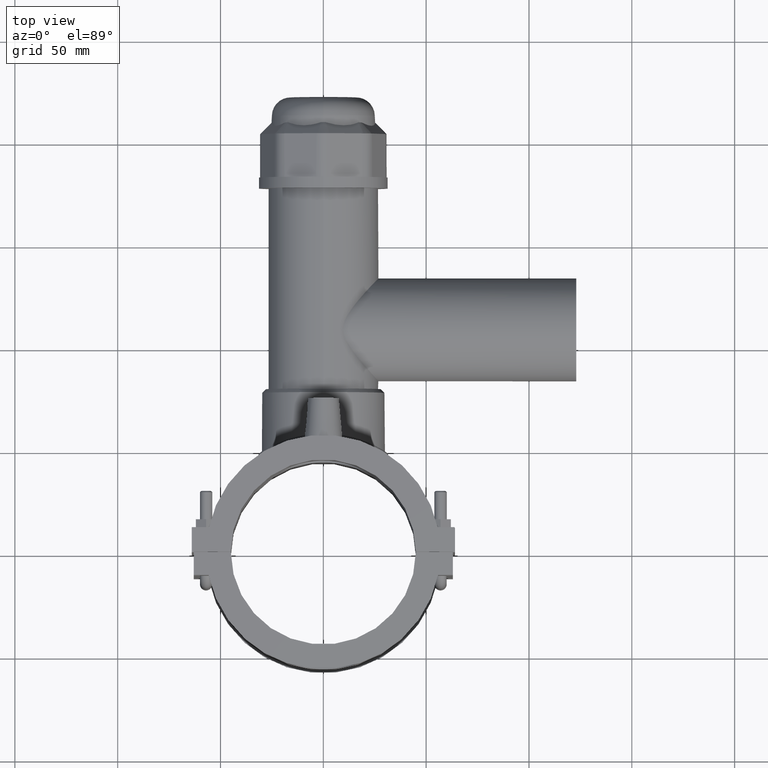
[diagram: clean part render]
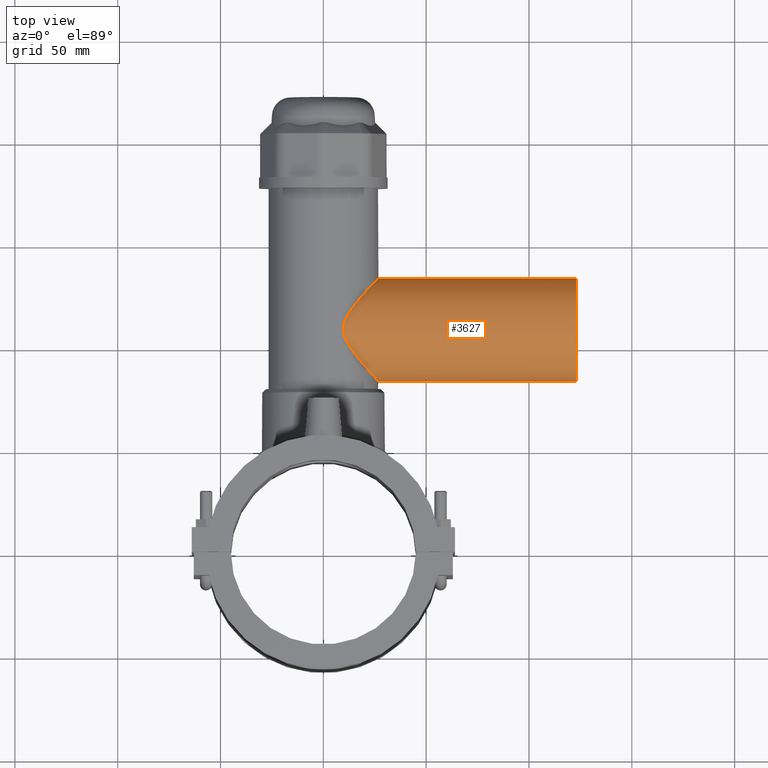
[diagram: same view with one face highlighted and labeled with its STEP entity id]
A machine part, top view. The second image highlights one B-rep face of the part: STEP entity #3627.
In plain terms, the highlighted cylindrical surface (bore or boss wall) has radius 25 mm, axis along (1, 0, 0).
Its self-contained STEP definition (entity closure, byte-faithful):
#669=FACE_BOUND('',#1115,.T.);
#727=B_SPLINE_CURVE_WITH_KNOTS('',3,(#5397,#5398,#5399,#5400,#5401,#5402,
#5403,#5404,#5405,#5406,#5407,#5408,#5409,#5410,#5411,#5412,#5413,#5414,
#5415,#5416,#5417,#5418,#5419,#5420,#5421,#5422,#5423,#5424,#5425,#5426,
#5427,#5428,#5429,#5430,#5431,#5432,#5433,#5434,#5435,#5436,#5437,#5438,
#5439,#5440,#5441,#5442,#5443,#5444,#5445,#5446,#5447,#5448,#5449,#5450,
#5451,#5452,#5453,#5454,#5455,#5456,#5457,#5458,#5459,#5460,#5461,#5462,
#5463,#5464,#5465,#5466,#5467,#5468,#5469,#5470),.UNSPECIFIED.,.T.,.F.,
(4,2,2,2,2,2,2,2,2,2,2,2,2,2,2,2,2,2,2,2,2,2,2,2,2,2,2,2,2,2,2,2,2,2,2,
2,4),(0.,0.282912475683647,0.565824951367295,1.13164990273459,1.69747485410188,
2.26329980546918,2.77255680881902,3.28181381216886,3.79107081551869,4.30032781886853,
4.80958482221837,5.31884182556821,5.82809882891805,6.33735583226789,6.90318078363518,
7.46900573500248,8.03483068636977,8.31774316205342,8.60065563773706,8.88356811342071,
9.16648058910436,9.73230554047165,10.2981304918389,10.8639554432062,11.3732124465561,
11.8824694499059,12.3917264532558,12.9009834566056,13.4102404599554,13.9194974633053,
14.4287544666551,14.9380114700049,15.5038364213722,16.0696613727395,16.6354863241068,
16.9183987997905,17.2013112754741),.UNSPECIFIED.);
#825=CYLINDRICAL_SURFACE('',#3859,25.);
#883=FACE_OUTER_BOUND('',#1114,.T.);
#1114=EDGE_LOOP('',(#2416));
#1115=EDGE_LOOP('',(#2417));
#1396=CIRCLE('',#3860,25.);
#1527=VERTEX_POINT('',#5394);
#1528=VERTEX_POINT('',#5396);
#1881=EDGE_CURVE('',#1527,#1527,#1396,.T.);
#1882=EDGE_CURVE('',#1528,#1528,#727,.T.);
#2416=ORIENTED_EDGE('',*,*,#1881,.F.);
#2417=ORIENTED_EDGE('',*,*,#1882,.F.);
#3627=ADVANCED_FACE('',(#883,#669),#825,.T.);
#3859=AXIS2_PLACEMENT_3D('',#5393,#4209,#4210);
#3860=AXIS2_PLACEMENT_3D('',#5395,#4211,#4212);
#4209=DIRECTION('center_axis',(1.,0.,0.));
#4210=DIRECTION('ref_axis',(0.,1.,0.));
#4211=DIRECTION('center_axis',(1.,0.,0.));
#4212=DIRECTION('ref_axis',(0.,0.,-1.));
#5393=CARTESIAN_POINT('Origin',(61.5,109.,0.));
#5394=CARTESIAN_POINT('',(123.,134.,0.));
#5395=CARTESIAN_POINT('Origin',(123.,109.,0.));
#5396=CARTESIAN_POINT('',(9.5864813670084,109.,-25.));
#5397=CARTESIAN_POINT('Ctrl Pts',(9.5864813670084,109.,-25.));
#5398=CARTESIAN_POINT('Ctrl Pts',(9.5864813670084,108.056958414388,-25.));
#5399=CARTESIAN_POINT('Ctrl Pts',(9.72519514003048,107.168776459679,-24.9475965368762));
#5400=CARTESIAN_POINT('Ctrl Pts',(10.1851279603164,105.462940205752,-24.7633834780037));
#5401=CARTESIAN_POINT('Ctrl Pts',(10.5057935558995,104.645168873005,-24.6312763549017));
#5402=CARTESIAN_POINT('Ctrl Pts',(11.6385803653009,102.252372347268,-24.1273116363703));
#5403=CARTESIAN_POINT('Ctrl Pts',(12.6135505562659,100.73756419557,-23.6492324893562));
#5404=CARTESIAN_POINT('Ctrl Pts',(14.711166927405,97.7935456058996,-22.4046741249319));
#5405=CARTESIAN_POINT('Ctrl Pts',(15.8327218656411,96.3767810364707,-21.6389385761058));
#5406=CARTESIAN_POINT('Ctrl Pts',(18.0335876979206,93.7068362563268,-19.8420881294255));
#5407=CARTESIAN_POINT('Ctrl Pts',(19.1140234258386,92.4550062030486,-18.810345262376));
#5408=CARTESIAN_POINT('Ctrl Pts',(21.0058624306453,90.302893190283,-16.6582322496104));
#5409=CARTESIAN_POINT('Ctrl Pts',(21.8940005759985,89.3126929903027,-15.4889800650539));
#5410=CARTESIAN_POINT('Ctrl Pts',(23.5203517307663,87.5186187206232,-12.8859931429871));
#5411=CARTESIAN_POINT('Ctrl Pts',(24.2582777769709,86.7148384923688,-11.4520144458179));
#5412=CARTESIAN_POINT('Ctrl Pts',(25.4788668042024,85.3920133143711,-8.39285766038594));
#5413=CARTESIAN_POINT('Ctrl Pts',(25.9626238318026,84.8717318239317,-6.76383413859713));
#5414=CARTESIAN_POINT('Ctrl Pts',(26.6108376592742,84.175573121008,-3.41622710121228));
#5415=CARTESIAN_POINT('Ctrl Pts',(26.775,84.,-1.69752334449946));
#5416=CARTESIAN_POINT('Ctrl Pts',(26.775,84.,1.69752334449946));
#5417=CARTESIAN_POINT('Ctrl Pts',(26.6108376592742,84.175573121008,3.41622710121227));
#5418=CARTESIAN_POINT('Ctrl Pts',(25.9626238318026,84.8717318239317,6.76383413859712));
#5419=CARTESIAN_POINT('Ctrl Pts',(25.4788668042025,85.3920133143711,8.39285766038594));
#5420=CARTESIAN_POINT('Ctrl Pts',(24.2582777769709,86.7148384923688,11.4520144458179));
#5421=CARTESIAN_POINT('Ctrl Pts',(23.5203517307663,87.5186187206232,12.8859931429871));
#5422=CARTESIAN_POINT('Ctrl Pts',(21.8940005759985,89.3126929903027,15.4889800650539));
#5423=CARTESIAN_POINT('Ctrl Pts',(21.0058624306454,90.302893190283,16.6582322496104));
#5424=CARTESIAN_POINT('Ctrl Pts',(19.1140234258387,92.4550062030486,18.810345262376));
#5425=CARTESIAN_POINT('Ctrl Pts',(18.0335876979207,93.7068362563267,19.8420881294255));
#5426=CARTESIAN_POINT('Ctrl Pts',(15.8327218656411,96.3767810364707,21.6389385761058));
#5427=CARTESIAN_POINT('Ctrl Pts',(14.711166927405,97.7935456058996,22.4046741249319));
#5428=CARTESIAN_POINT('Ctrl Pts',(12.6135505562659,100.73756419557,23.6492324893562));
#5429=CARTESIAN_POINT('Ctrl Pts',(11.6385803653009,102.252372347268,24.1273116363703));
#5430=CARTESIAN_POINT('Ctrl Pts',(10.5057935558995,104.645168873005,24.6312763549017));
#5431=CARTESIAN_POINT('Ctrl Pts',(10.1851279603164,105.462940205752,24.7633834780037));
#5432=CARTESIAN_POINT('Ctrl Pts',(9.72519514003057,107.168776459679,24.9475965368762));
#5433=CARTESIAN_POINT('Ctrl Pts',(9.58648136700849,108.056958414388,25.));
#5434=CARTESIAN_POINT('Ctrl Pts',(9.5864813670085,109.943041585612,25.));
#5435=CARTESIAN_POINT('Ctrl Pts',(9.72519514003058,110.831223540321,24.9475965368762));
#5436=CARTESIAN_POINT('Ctrl Pts',(10.1851279603164,112.537059794248,24.7633834780037));
#5437=CARTESIAN_POINT('Ctrl Pts',(10.5057935558996,113.354831126995,24.6312763549017));
#5438=CARTESIAN_POINT('Ctrl Pts',(11.6385803653009,115.747627652732,24.1273116363703));
#5439=CARTESIAN_POINT('Ctrl Pts',(12.6135505562659,117.26243580443,23.6492324893562));
#5440=CARTESIAN_POINT('Ctrl Pts',(14.711166927405,120.2064543941,22.4046741249319));
#5441=CARTESIAN_POINT('Ctrl Pts',(15.8327218656412,121.623218963529,21.6389385761058));
#5442=CARTESIAN_POINT('Ctrl Pts',(18.0335876979207,124.293163743673,19.8420881294255));
#5443=CARTESIAN_POINT('Ctrl Pts',(19.1140234258387,125.544993796951,18.810345262376));
#5444=CARTESIAN_POINT('Ctrl Pts',(21.0058624306454,127.697106809717,16.6582322496104));
#5445=CARTESIAN_POINT('Ctrl Pts',(21.8940005759985,128.687307009697,15.4889800650539));
#5446=CARTESIAN_POINT('Ctrl Pts',(23.5203517307663,130.481381279377,12.8859931429871));
#5447=CARTESIAN_POINT('Ctrl Pts',(24.2582777769709,131.285161507631,11.4520144458179));
#5448=CARTESIAN_POINT('Ctrl Pts',(25.4788668042025,132.607986685629,8.39285766038593));
#5449=CARTESIAN_POINT('Ctrl Pts',(25.9626238318026,133.128268176068,6.76383413859712));
#5450=CARTESIAN_POINT('Ctrl Pts',(26.6108376592742,133.824426878992,3.41622710121227));
#5451=CARTESIAN_POINT('Ctrl Pts',(26.775,134.,1.69752334449946));
#5452=CARTESIAN_POINT('Ctrl Pts',(26.775,134.,-1.69752334449946));
#5453=CARTESIAN_POINT('Ctrl Pts',(26.6108376592742,133.824426878992,-3.41622710121227));
#5454=CARTESIAN_POINT('Ctrl Pts',(25.9626238318026,133.128268176068,-6.76383413859714));
#5455=CARTESIAN_POINT('Ctrl Pts',(25.4788668042024,132.607986685629,-8.39285766038595));
#5456=CARTESIAN_POINT('Ctrl Pts',(24.2582777769709,131.285161507631,-11.4520144458179));
#5457=CARTESIAN_POINT('Ctrl Pts',(23.5203517307663,130.481381279377,-12.8859931429872));
#5458=CARTESIAN_POINT('Ctrl Pts',(21.8940005759985,128.687307009697,-15.4889800650539));
#5459=CARTESIAN_POINT('Ctrl Pts',(21.0058624306453,127.697106809717,-16.6582322496104));
#5460=CARTESIAN_POINT('Ctrl Pts',(19.1140234258386,125.544993796951,-18.810345262376));
#5461=CARTESIAN_POINT('Ctrl Pts',(18.0335876979206,124.293163743673,-19.8420881294256));
#5462=CARTESIAN_POINT('Ctrl Pts',(15.8327218656411,121.623218963529,-21.6389385761058));
#5463=CARTESIAN_POINT('Ctrl Pts',(14.7111669274049,120.2064543941,-22.4046741249319));
#5464=CARTESIAN_POINT('Ctrl Pts',(12.6135505562658,117.26243580443,-23.6492324893562));
#5465=CARTESIAN_POINT('Ctrl Pts',(11.6385803653008,115.747627652732,-24.1273116363703));
#5466=CARTESIAN_POINT('Ctrl Pts',(10.5057935558994,113.354831126995,-24.6312763549017));
#5467=CARTESIAN_POINT('Ctrl Pts',(10.1851279603163,112.537059794248,-24.7633834780037));
#5468=CARTESIAN_POINT('Ctrl Pts',(9.72519514003045,110.831223540321,-24.9475965368763));
#5469=CARTESIAN_POINT('Ctrl Pts',(9.58648136700839,109.943041585612,-25.));
#5470=CARTESIAN_POINT('Ctrl Pts',(9.5864813670084,109.,-25.));